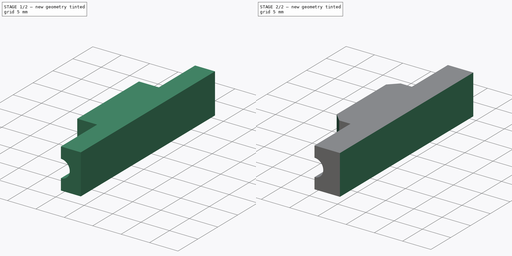
[diagram: build sequence overview — one tinted view per stage of 2, left to right]
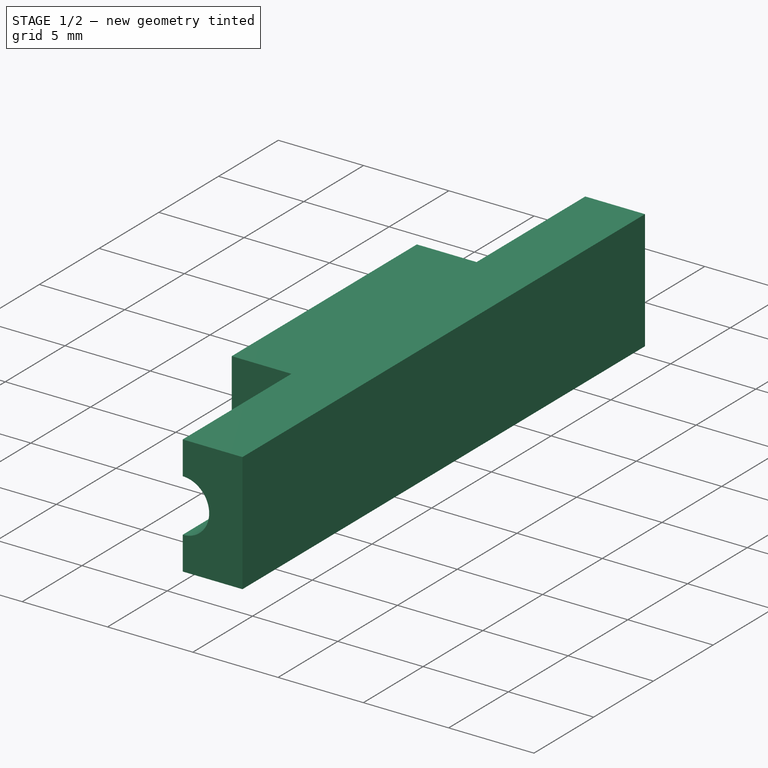
[diagram: stage 1 of 2 — iso view after this stage's code; geometry added in this stage tinted green]
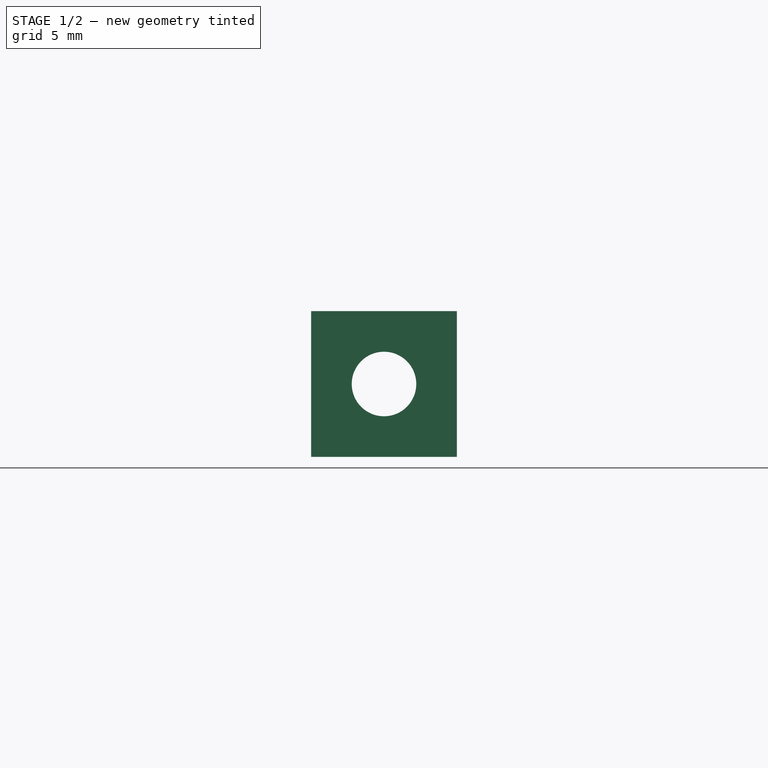
[diagram: stage 1 of 2 — front view after this stage's code; geometry added in this stage tinted green]
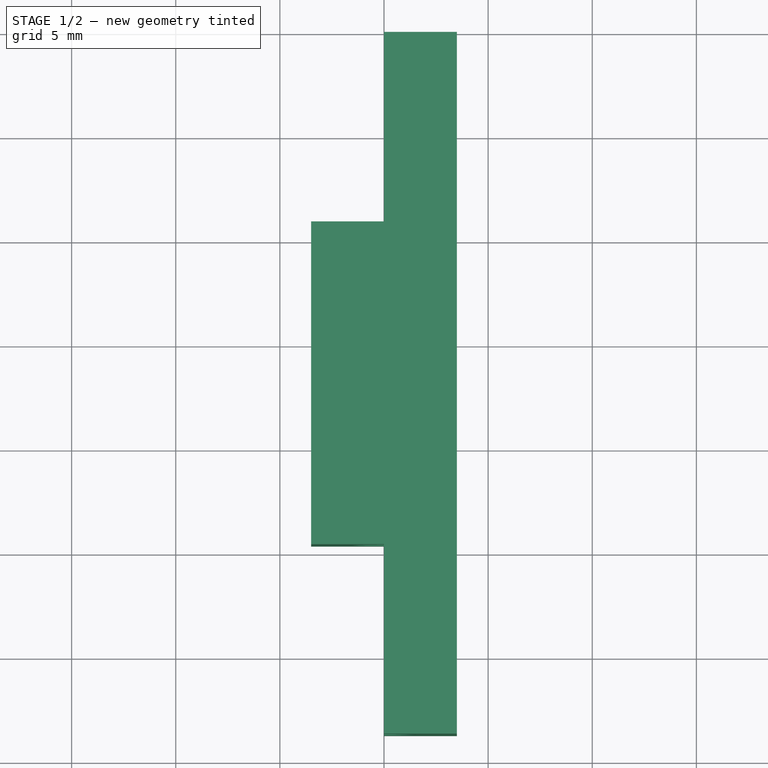
[diagram: stage 1 of 2 — top view after this stage's code; geometry added in this stage tinted green]
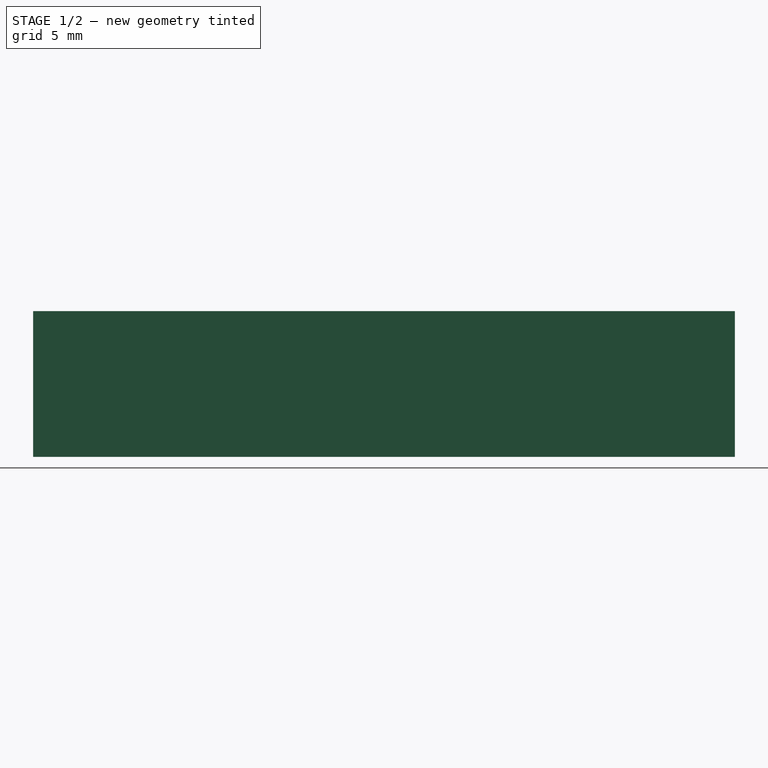
[diagram: stage 1 of 2 — right view after this stage's code; geometry added in this stage tinted green]
FCSTD DOCUMENT  (FreeCAD 1.1R44874 (Git))
Label: afastador-central
License: All rights reserved
LicenseURL: https://en.wikipedia.org/wiki/All_rights_reserved
objects: Sketcher::SketchObject×2, PartDesign::Pad×2, PartDesign::Pocket×1, PartDesign::Chamfer×1, PartDesign::Body×1, App::Point×1
note: 17 computed .brp shape members not serialized (recipe doc carries the construction recipe); baked Part::Feature solids carry a one-line shape summary decoded from their .brp

FEATURE [Sketcher::SketchObject] Sketch
  ArcFitTolerance = 1e-06
  AttachmentSupport = -> [XZ_Plane]
  ExternalTypes = [0]
  FullyConstrained = true
  MakeInternals = false
  MapMode = 5
  Placement = pos=(0,0,0) rot=(1,0,0;1.5708rad)
  _ExternalGeoVersion = 0
  sketch-geometry (6):
    g0: Circle CenterX=0 CenterY=0 CenterZ=0 NormalX=0 NormalY=0 NormalZ=1 AngleXU=0 Radius=1.55
    g1: LineSegment StartX=-3.5 StartY=3.5 StartZ=0 EndX=-3.5 EndY=-3.5 EndZ=0
    g2: LineSegment StartX=-3.5 StartY=-3.5 StartZ=0 EndX=3.5 EndY=-3.5 EndZ=0
    g3: LineSegment StartX=3.5 StartY=-3.5 StartZ=0 EndX=3.5 EndY=3.5 EndZ=0
    g4: LineSegment StartX=3.5 StartY=3.5 StartZ=0 EndX=-3.5 EndY=3.5 EndZ=0
    g5: Circle [constr] CenterX=0 CenterY=0 CenterZ=0 NormalX=0 NormalY=0 NormalZ=1 AngleXU=0 Radius=3.5
  constraints (14):
    c: Coincident(g0,g-1)
    c: Coincident(g1,g2)
    c: Coincident(g2,g3)
    c: Coincident(g3,g4)
    c: Coincident(g4,g1)
    c: Vertical(g3)
    c: Horizontal(g2)
    c: Symmetric(g1,g3,g-2)
    c: Symmetric(g1,g1,g-1)
    c: Coincident(g5,g0)
    c: Tangent(g5,g4)
    c: Tangent(g5,g3)
    c: Diameter(g0) = 3.1
    c: Diameter(g5) = 7
FEATURE [PartDesign::Pad] Pad
  Direction = (0,-1,2e-16)
  Length = 33.7
  Length2 = 10
  Placement = pos=(0,0,0) rot=(1,0,0;1.5708rad)
  Profile = -> Sketch
  ReferenceAxis = -> Sketch [N_Axis]
  Refine = true
  SideType = 0
  Suppressed = false
  Type = 0
  Type2 = 0
FEATURE [Sketcher::SketchObject] Sketch001
  ArcFitTolerance = 1e-06
  AttachmentSupport = -> [Pad]
  ExternalGeometry = -> [Pad]
  ExternalTypes = [0]
  FullyConstrained = true
  MakeInternals = false
  MapMode = 5
  Placement = pos=(0,-8e-16,-3.5) rot=(1,0,0;3.14159rad)
  _ExternalGeoVersion = 0
  sketch-geometry (8):
    g0: LineSegment StartX=-3.5 StartY=33.7 StartZ=0 EndX=-3.5 EndY=24.6 EndZ=0
    g1: LineSegment StartX=-3.5 StartY=24.6 StartZ=0 EndX=0 EndY=24.6 EndZ=0
    g2: LineSegment StartX=0 StartY=24.6 StartZ=0 EndX=0 EndY=33.7 EndZ=0
    g3: LineSegment StartX=0 StartY=33.7 StartZ=0 EndX=-3.5 EndY=33.7 EndZ=0
    g4: LineSegment StartX=-3.5 StartY=9.1 StartZ=0 EndX=-3.5 EndY=0 EndZ=0
    g5: LineSegment StartX=-3.5 StartY=0 StartZ=0 EndX=0 EndY=0 EndZ=0
    g6: LineSegment StartX=0 StartY=0 StartZ=0 EndX=0 EndY=9.1 EndZ=0
    g7: LineSegment StartX=0 StartY=9.1 StartZ=0 EndX=-3.5 EndY=9.1 EndZ=0
  constraints (24):
    c: Coincident(g0,g1)
    c: Coincident(g1,g2)
    c: Coincident(g2,g3)
    c: Coincident(g3,g0)
    c: Vertical(g0)
    c: Vertical(g2)
    c: Horizontal(g1)
    c: Horizontal(g3)
    c: Coincident(g4,g5)
    c: Coincident(g5,g6)
    c: Coincident(g6,g7)
    c: Coincident(g7,g4)
    c: Vertical(g4)
    c: Vertical(g6)
    c: Horizontal(g5)
    c: Horizontal(g7)
    c: PointOnObject(g2,g-2)
    c: PointOnObject(g5,g-1)
    c: PointOnObject(g2,g-4)
    c: PointOnObject(g0,g-3)
    c: PointOnObject(g4,g-3)
    c: Equal(g4,g0)
    c: PointOnObject(g5,g-2)
    c: DistanceY(g4,g0) = 15.5
FEATURE [PartDesign::Pocket] Pocket
  BaseFeature = -> Pad
  Direction = (0,0,1)
  Length = 5
  Length2 = 5
  Placement = pos=(0,0,0) rot=(1,0,0;1.5708rad)
  Profile = -> Sketch001
  ReferenceAxis = -> Sketch001 [N_Axis]
  Refine = true
  SideType = 0
  Suppressed = false
  Type = 1
  Type2 = 0
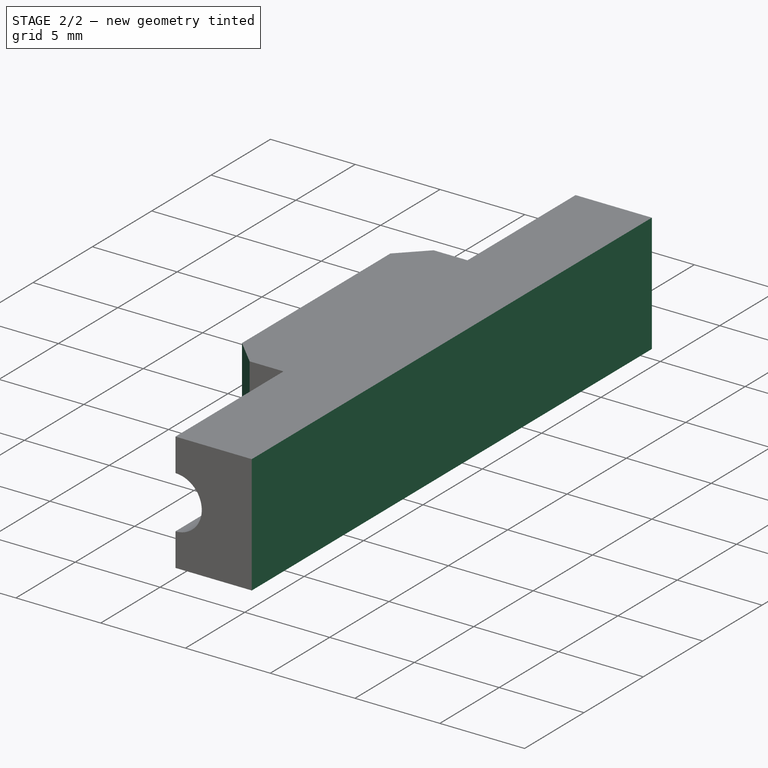
[diagram: stage 2 of 2 — iso view after this stage's code; geometry added in this stage tinted green]
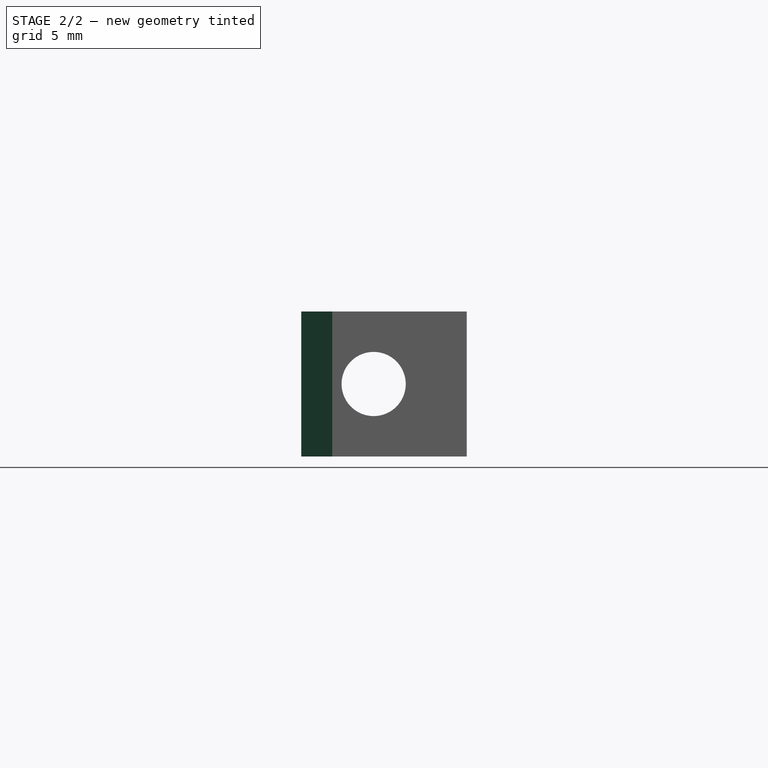
[diagram: stage 2 of 2 — front view after this stage's code; geometry added in this stage tinted green]
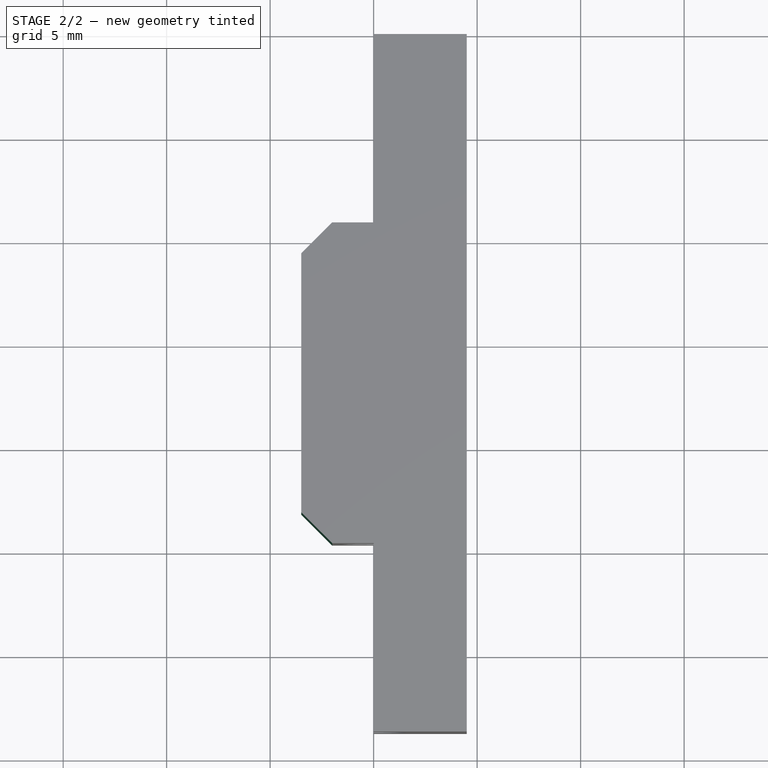
[diagram: stage 2 of 2 — top view after this stage's code; geometry added in this stage tinted green]
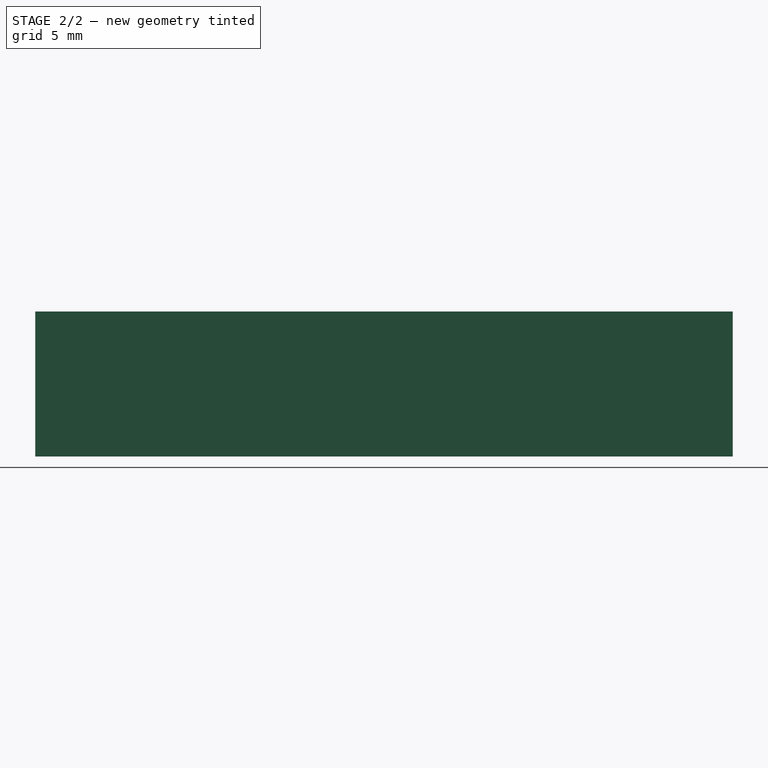
[diagram: stage 2 of 2 — right view after this stage's code; geometry added in this stage tinted green]
FEATURE [PartDesign::Pad] Pad001
  BaseFeature = -> Pocket
  Direction = (1,0,0)
  Length = 1
  Length2 = 10
  Placement = pos=(0,0,0) rot=(1,0,0;1.5708rad)
  Profile = -> Pocket [Face10]
  Refine = true
  SideType = 0
  Suppressed = false
  Type = 0
  Type2 = 0
FEATURE [PartDesign::Chamfer] Chamfer
  Angle = 45
  Base = -> Pad001 [Edge3,Edge1]
  BaseFeature = -> Pad001
  ChamferType = 0
  FlipDirection = false
  Placement = pos=(0,0,0) rot=(1,0,0;1.5708rad)
  Refine = true
  Size = 1.5
  Size2 = 1
  SupportTransform = false
  Suppressed = false
  UseAllEdges = false
FEATURE [PartDesign::Body] Body  label="Corpo"
  AllowCompound = false
  Group = -> [Sketch,Pad,Sketch001,Pocket,Pad001,Chamfer]
  Origin = -> Origin
  Tip = -> Chamfer
FEATURE [App::Point] Origin001  label="Origem"
  Role = Origin
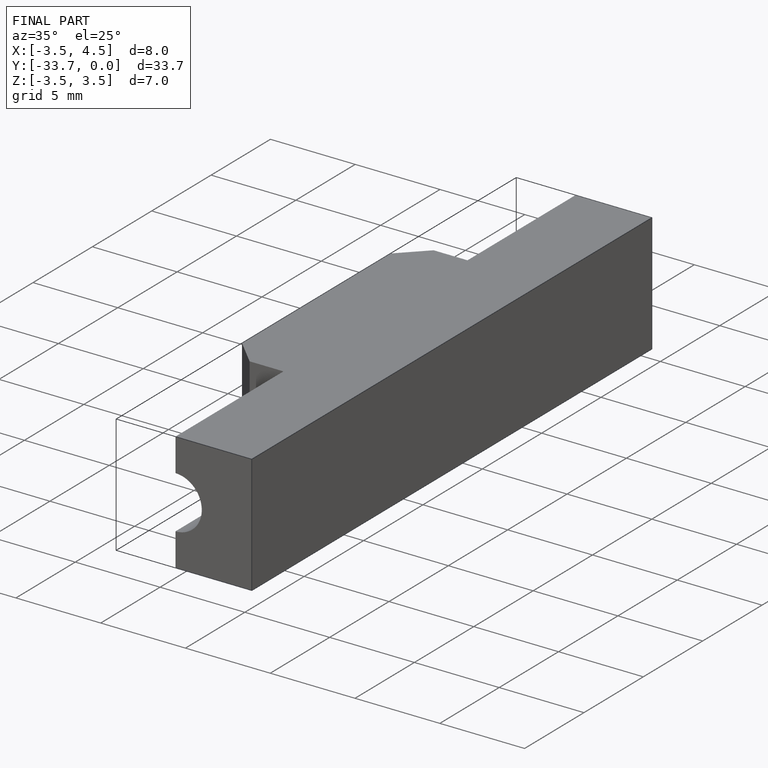
[diagram: finished part — iso view with bounding-box wireframe]
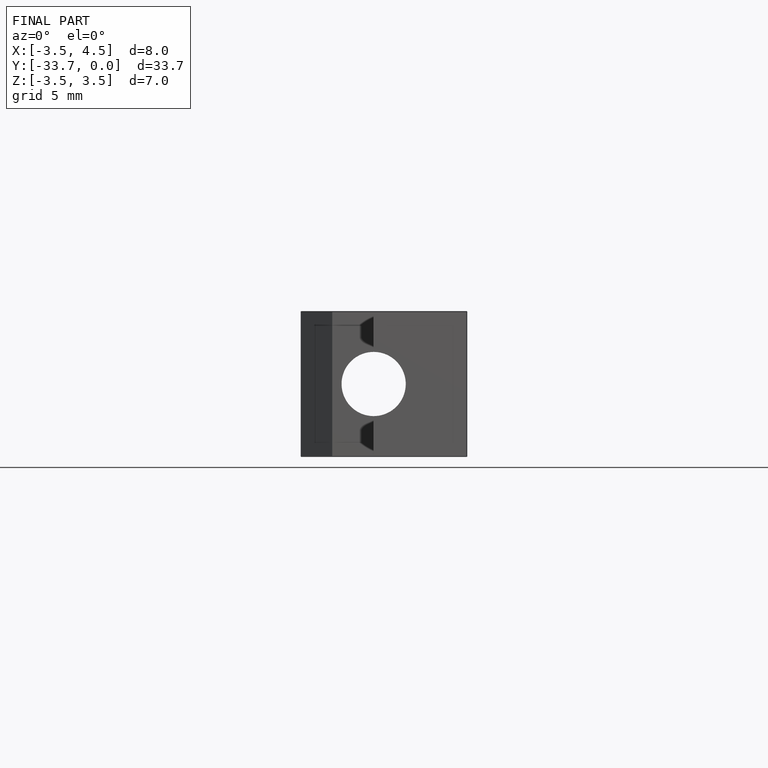
[diagram: finished part — front view with bounding-box wireframe]
